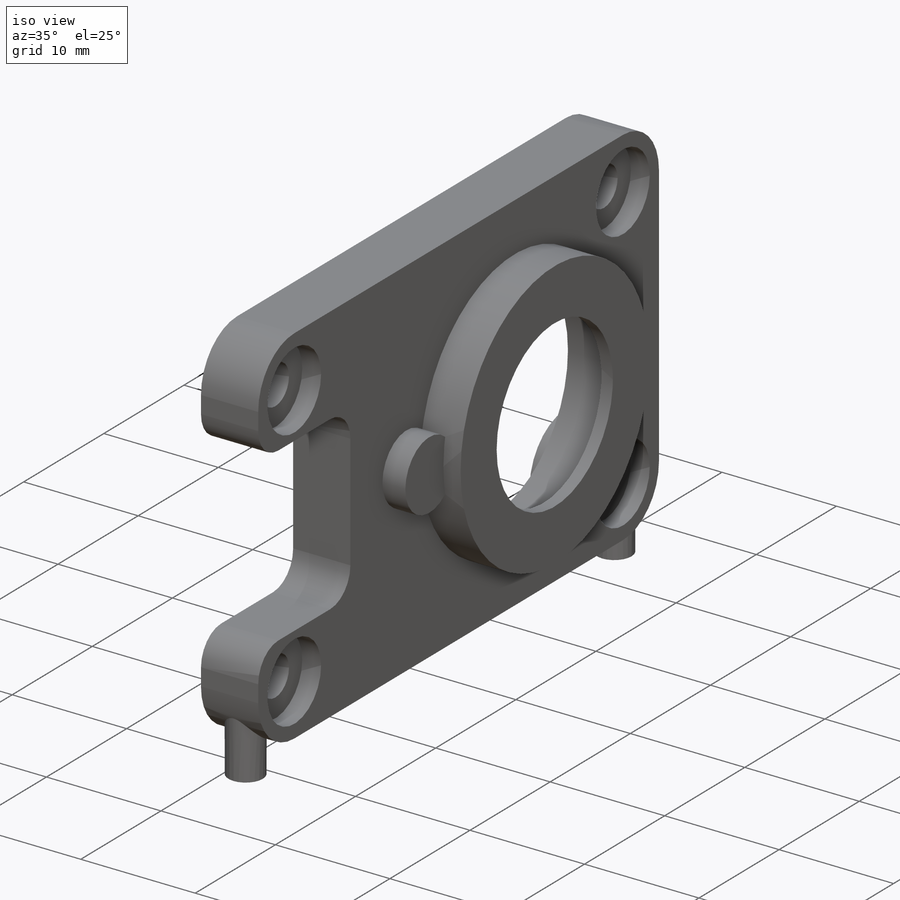
[diagram: iso view]
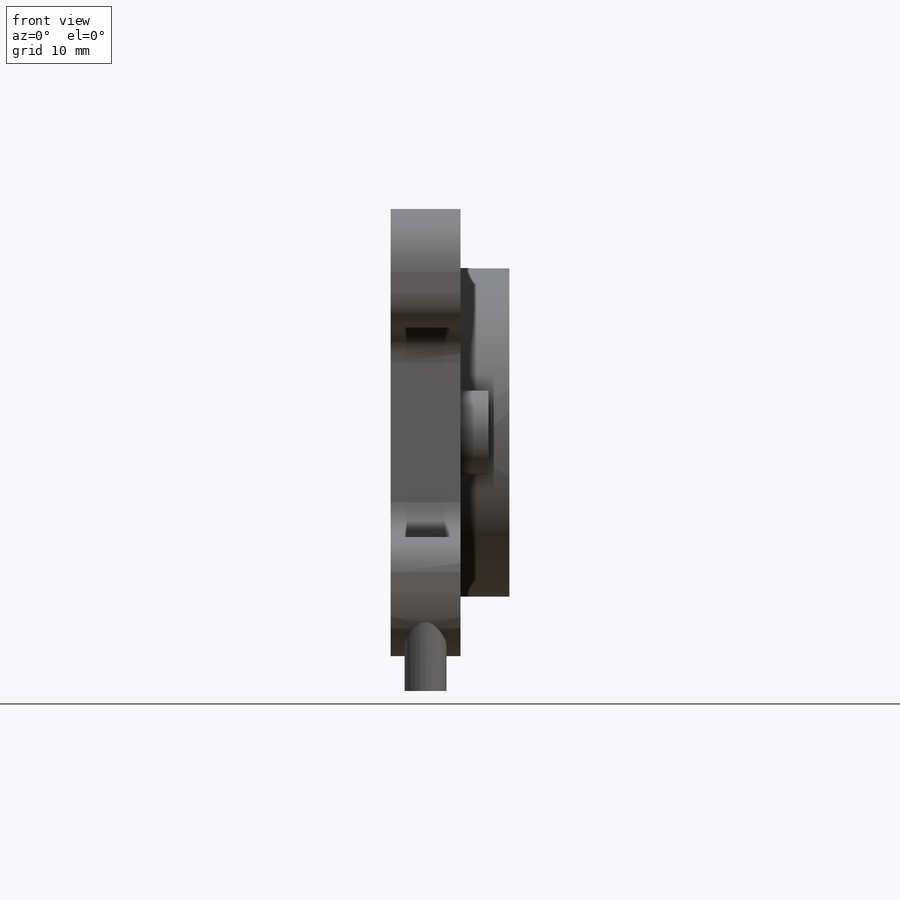
[diagram: front view]
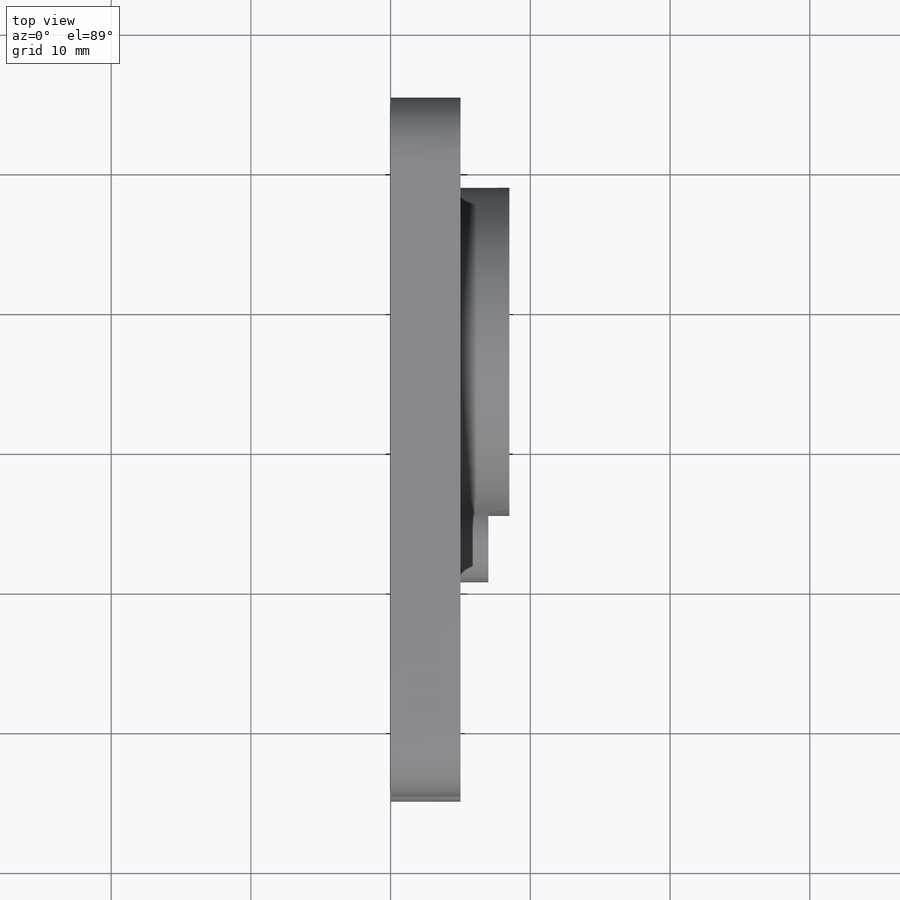
[diagram: top view]
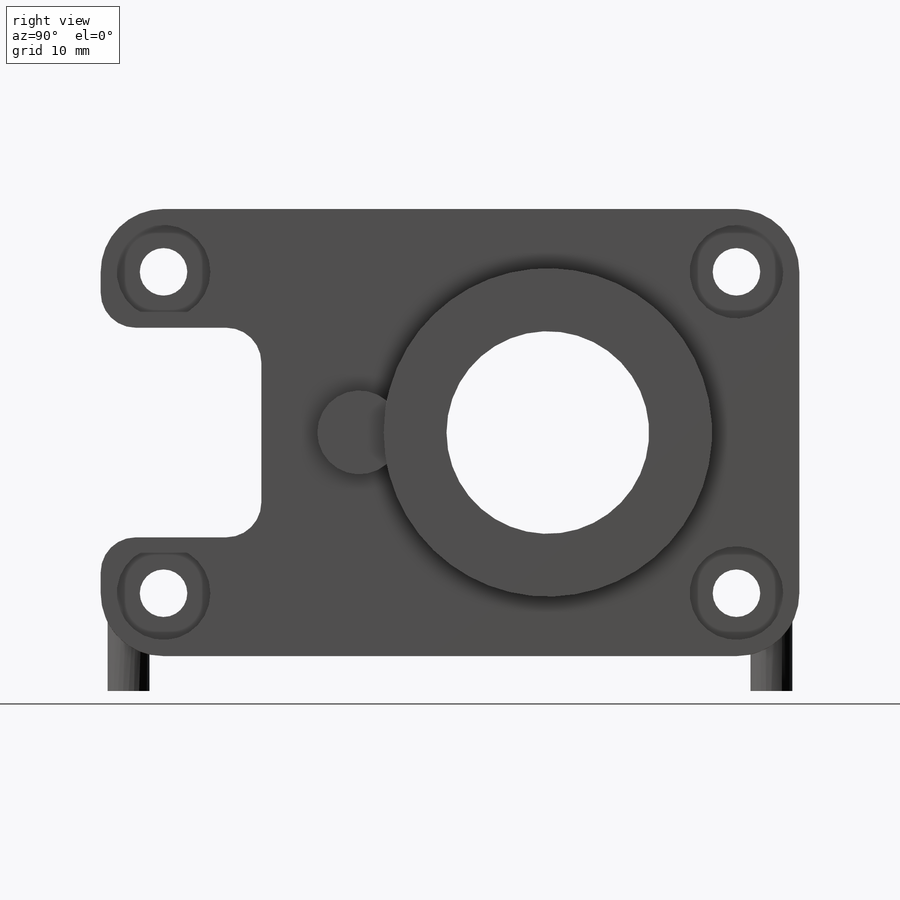
[diagram: right view]
SOLIDWORKS PART (.sldprt)
format: sldprt  version: not decoded by parser v0  size: 453,632 bytes
history: native  units: mm
features: sketch x10, extrude x5, cut_extrude x3, fillet x2, material x1, hole x1, move_body x1 (+12 scaffold rows collapsed; 1 parser-record rows omitted)
feature tree (36):
  scaffold x12  (default folders/planes/origin — collapsed)
  material  "Delrin 2700 NC010, Low Viscosity Acetal Copolymer (SS)"
  sketch  "Sketch1"  dims[c1.D5=14.5mm c1.D6=14.5mm c1.D1=32.0mm c1.D2=50.0mm c1.D3=8.5mm c1.D4=38.5mm c2.D6=18.0mm]
  extrude  "Boss-Extrude1"  Depth=5mm
  sketch  "Sketch2"  dims[D1=23.5mm]
  extrude  "Boss-Extrude2"  Depth=3.5mm
  fillet  "Fillet1"  Radius=4.5mm
  fillet  "Fillet2"  Radius=2.5mm
  sketch  "Sketch3"  dims[c1.D1=~6.943391mm c1.D2=3.0mm c1.D3=3.0mm c2.D1=46.0mm c2.D3=23.0mm]
  extrude  "Boss-Extrude3"  Depth=2.5mm
  hole  "CBORE for M3 SBHCS1"  Diameter=3.4mm Depth=5mm
  sketch  "Sketch5"  dims[c1.D1=23.0mm c1.D2=11.5mm c1.D3=4.5mm c2.D1=4.5mm c2.D2=4.5mm c2.D3=4.5mm c2.D4=41.0mm]
  sketch  "Sketch4"  dims[hole-wizard template sketch: 42 standard entries collapsed; hole parameters kept: c12.Thru Hole Depth=5.0mm c12.C'Bore Dia.=6.7mm c12.C'Bore Depth=1.65mm]
  sketch  "Sketch6"  dims[D1=2.0mm]
  cut_extrude  "Cut-Extrude1"  Depth=3mm
  sketch  "Sketch7"  dims[D1=19.0mm]
  cut_extrude  "Cut-Extrude2"  Depth=4.5mm
  sketch  "Sketch10"  dims[D1=6.0mm D2=13.5mm]
  extrude  "Boss-Extrude5"  Depth=2mm
  sketch  "Sketch11"
  extrude  "Boss-Extrude6"  Depth=0.5mm
  sketch  "Sketch12"  dims[D1=3.0mm]
  cut_extrude  "Cut-Extrude4"  Depth=4mm
  parser-record x1  (decoder bookkeeping rows leaked as tree rows — omitted from the tree; the rows remain in map.json)
  move_body  "Body-Move/Copy1"
decode coverage: 20 of 22 modeling features carry decoded parameters
note: ~ marks probable driven/reference dimensions
note: suppression state not decoded; provenance and decode notes live in map.json
